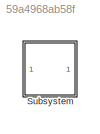
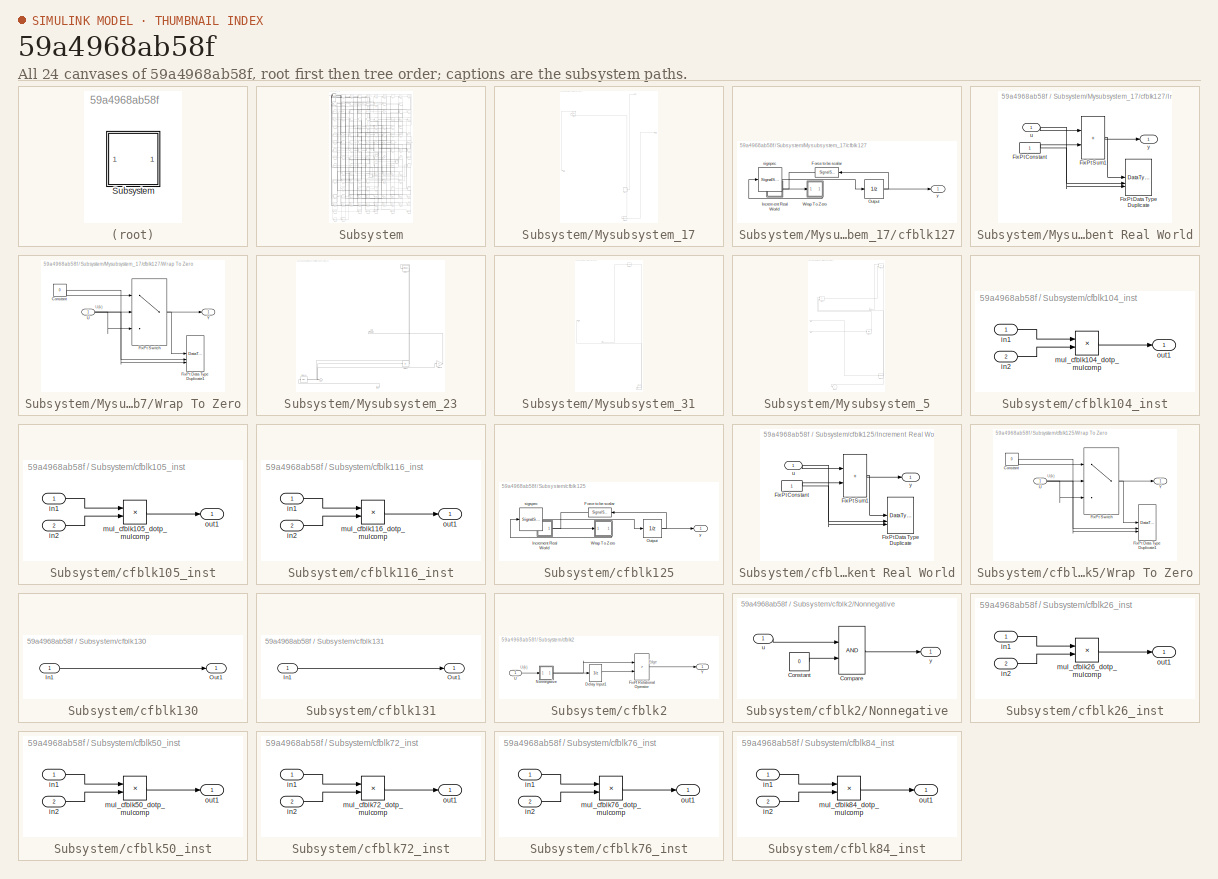
[diagram: thumbnail index - all 24 canvases of the model, root first then tree order]
MODEL slx_59a4968ab58f
KIND model
CONFIG AbsTol = auto
CONFIG EnableMultiTasking = off
CONFIG FixedStep = auto
CONFIG MaxStep = auto
CONFIG MinStep = auto
CONFIG RelTol = 1e-3
CONFIG SampleTimeConstraint = Unconstrained
CONFIG SolverName = VariableStepAuto
CONFIG StartTime = 0.0
CONFIG StopTime = 10.0
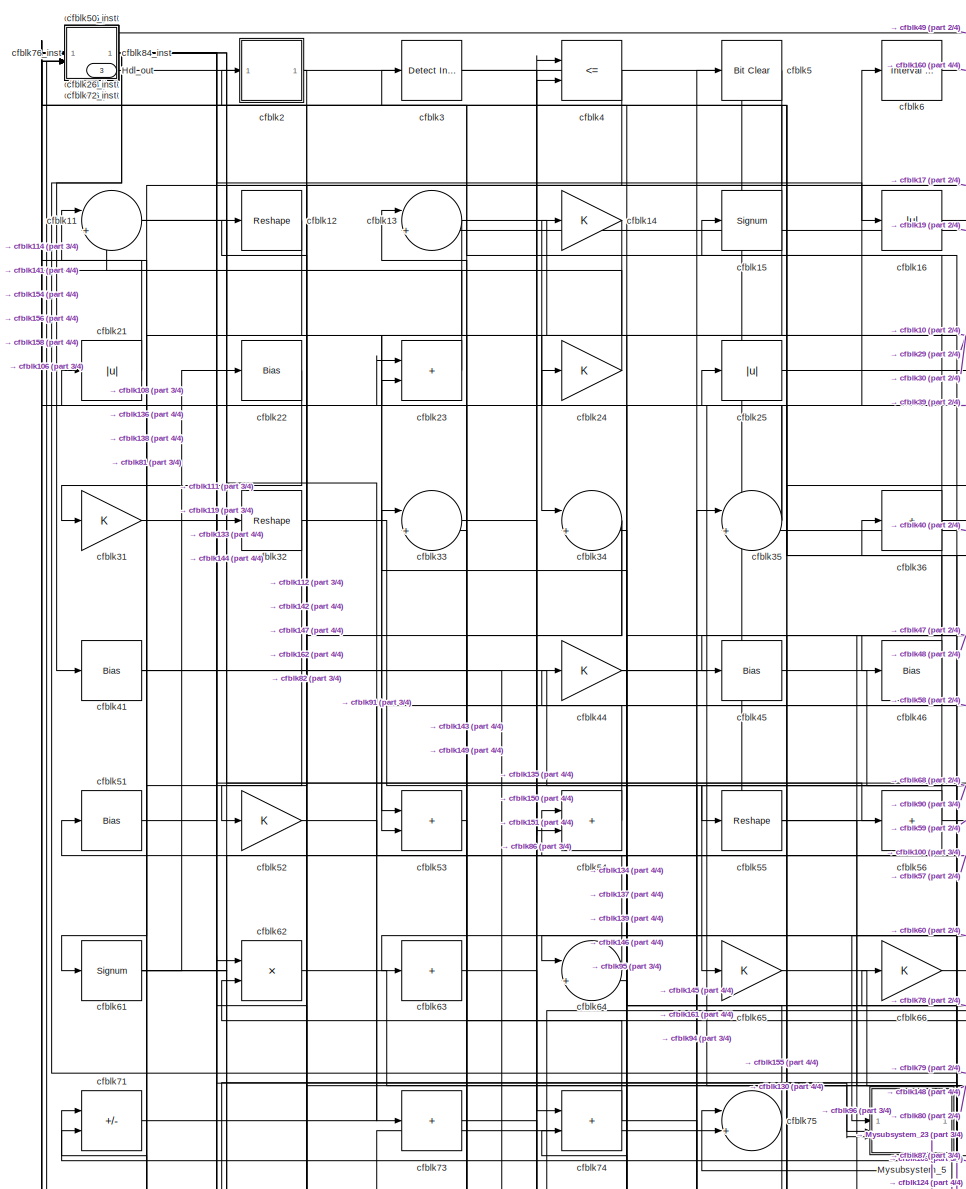
[diagram: Subsystem - part 1/4, top left region]
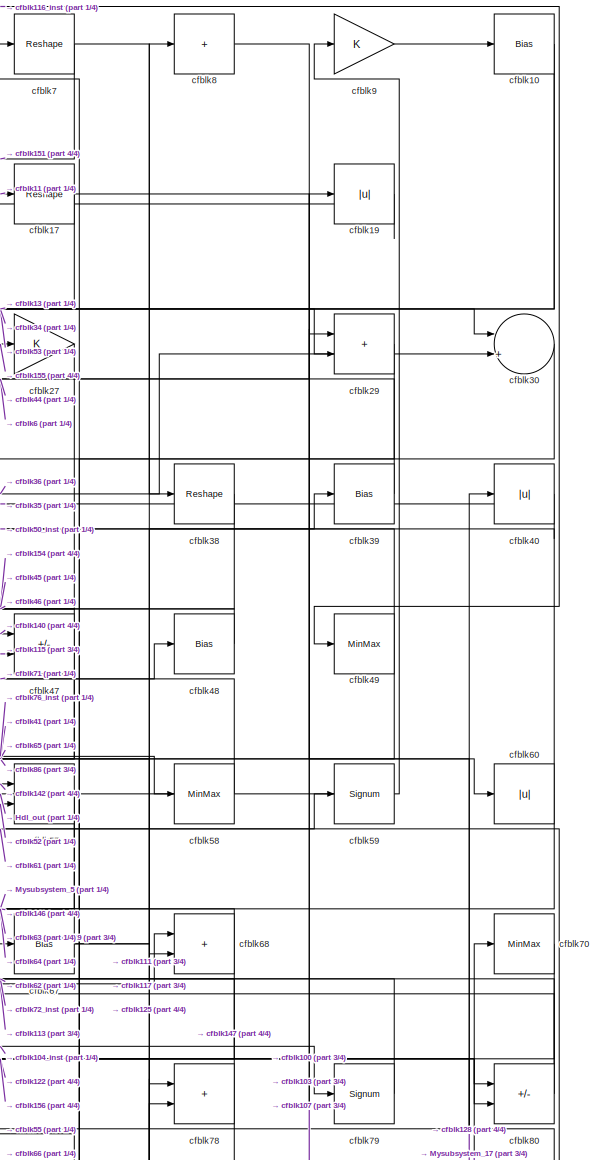
[diagram: Subsystem - part 2/4, top right region]
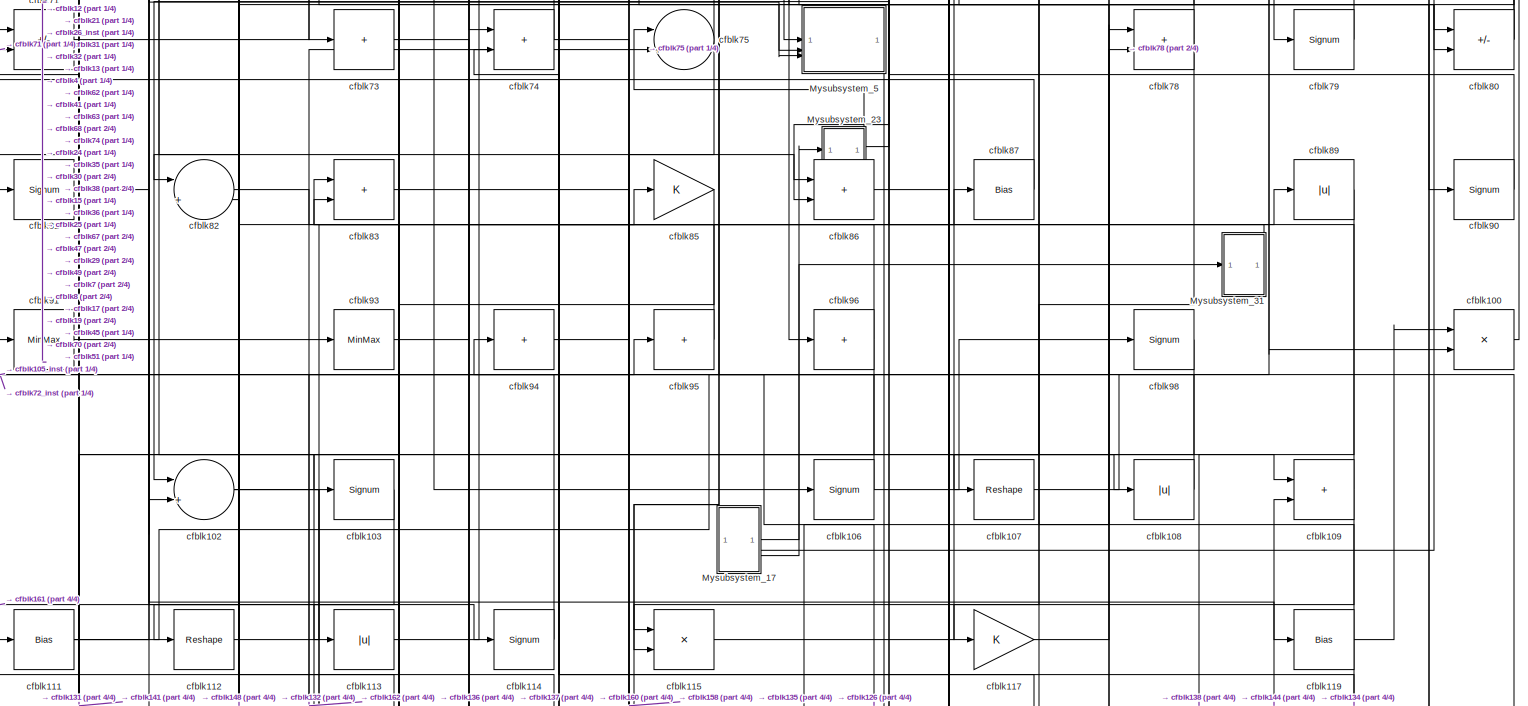
[diagram: Subsystem - part 3/4, full width, middle band]
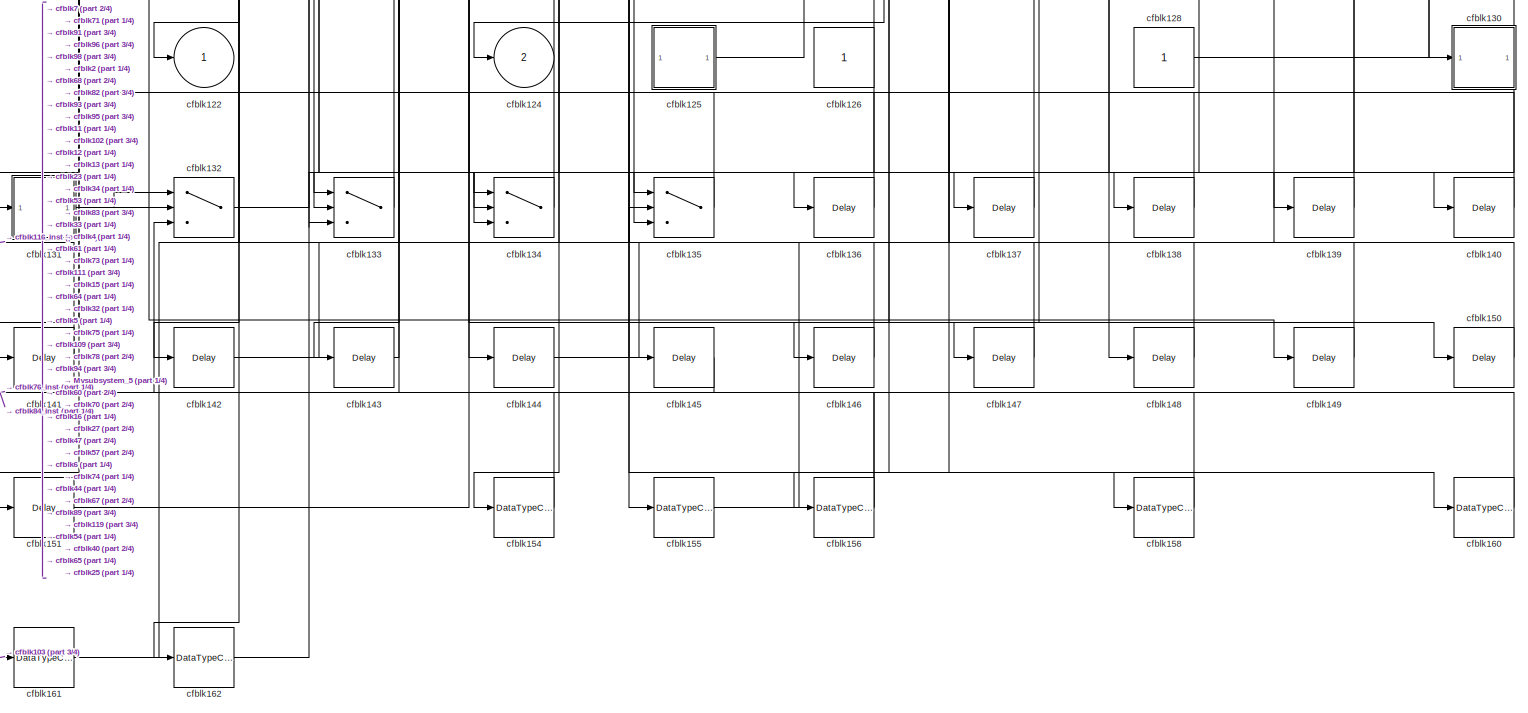
[diagram: Subsystem - part 4/4, full width, bottom band]
BLOCK [SubSystem] Subsystem
BLOCK [Outport] Subsystem/Hdl_out
  OutDataTypeStr = uint8
  Port = 3
  SampleTime = 1
BLOCK [SubSystem] Subsystem/Mysubsystem_17
BLOCK [Outport] Subsystem/Mysubsystem_17/Out2
  Port = 2
  SampleTime = 1
BLOCK [Outport] Subsystem/Mysubsystem_17/Out3
  Port = 3
  SampleTime = 1
BLOCK [SubSystem] Subsystem/Mysubsystem_17/cfblk127
BLOCK [SignalSpecification] Subsystem/Mysubsystem_17/cfblk127/Force to be scalar
  Dimensions = 1
  DisableCoverage = on
BLOCK [SubSystem] Subsystem/Mysubsystem_17/cfblk127/Increment Real World
BLOCK [Constant] Subsystem/Mysubsystem_17/cfblk127/Increment Real World/FixPt Constant
  DisableCoverage = on
  OutDataTypeStr = Inherit: Inherit via back propagation
  SampleTime = -1
BLOCK [DataTypeDuplicate] Subsystem/Mysubsystem_17/cfblk127/Increment Real World/FixPt Data Type Duplicate
  DisableCoverage = on
  NumInputPorts = 3
BLOCK [Sum] Subsystem/Mysubsystem_17/cfblk127/Increment Real World/FixPt Sum1
  IconShape = rectangular
  InputSameDT = on
  LockScale = on
  OutDataTypeStr = Inherit: Inherit via back propagation
BLOCK [Inport] Subsystem/Mysubsystem_17/cfblk127/Increment Real World/u
  OutDataTypeStr = uint16
  SampleTime = 1
BLOCK [Outport] Subsystem/Mysubsystem_17/cfblk127/Increment Real World/y
  SampleTime = 1
BLOCK [UnitDelay] Subsystem/Mysubsystem_17/cfblk127/Output
  HasFrameUpgradeWarning = on
  InitialCondition = 0.0
  SampleTime = tsamp
BLOCK [SubSystem] Subsystem/Mysubsystem_17/cfblk127/Wrap To Zero
BLOCK [Constant] Subsystem/Mysubsystem_17/cfblk127/Wrap To Zero/Constant
  DisableCoverage = on
  OutDataTypeStr = Inherit: Inherit via back propagation
  SampleTime = -1
  Value = 0
BLOCK [DataTypeDuplicate] Subsystem/Mysubsystem_17/cfblk127/Wrap To Zero/FixPt Data Type Duplicate1
  DisableCoverage = on
  NumInputPorts = 3
BLOCK [Switch] Subsystem/Mysubsystem_17/cfblk127/Wrap To Zero/FixPt Switch
  Criteria = u2 > Threshold
  InputSameDT = off
  OutDataTypeStr = Inherit: Inherit via back propagation
  SaturateOnIntegerOverflow = off
  Threshold = Threshold
  ZeroCross = off
BLOCK [Inport] Subsystem/Mysubsystem_17/cfblk127/Wrap To Zero/U
  OutDataTypeStr = uint16
  SampleTime = 1
BLOCK [Outport] Subsystem/Mysubsystem_17/cfblk127/Wrap To Zero/Y
  SampleTime = 1
BLOCK [SignalSpecification] Subsystem/Mysubsystem_17/cfblk127/sigspec
  Dimensions = 1
  OutDataTypeStr = uint16
BLOCK [Outport] Subsystem/Mysubsystem_17/cfblk127/y
  SampleTime = 1
BLOCK [DataTypeConversion] Subsystem/Mysubsystem_17/cfblk157
  OutDataTypeStr = uint8
  RndMeth = Floor
  SaturateOnIntegerOverflow = off
BLOCK [Bias] Subsystem/Mysubsystem_17/cfblk42
  Bias = 0.0
  SaturateOnIntegerOverflow = off
BLOCK [Outport] Subsystem/Mysubsystem_17/y
  SampleTime = 1
BLOCK [SubSystem] Subsystem/Mysubsystem_23
BLOCK [Inport] Subsystem/Mysubsystem_23/In1
  OutDataTypeStr = uint16
  PortDimensions = 1
  SampleTime = 1
BLOCK [Outport] Subsystem/Mysubsystem_23/Out1
  SampleTime = 1
BLOCK [Outport] Subsystem/Mysubsystem_23/Out2
  Port = 2
  SampleTime = 1
BLOCK [Bias] Subsystem/Mysubsystem_23/cfblk101
  Bias = 0.0
  SaturateOnIntegerOverflow = off
BLOCK [MinMax] Subsystem/Mysubsystem_23/cfblk37
BLOCK [Abs] Subsystem/Mysubsystem_23/cfblk97
  SaturateOnIntegerOverflow = off
BLOCK [Gain] Subsystem/Mysubsystem_23/cfblk99
BLOCK [SubSystem] Subsystem/Mysubsystem_31
BLOCK [Inport] Subsystem/Mysubsystem_31/In1
  OutDataTypeStr = uint16
  PortDimensions = 1
  SampleTime = 1
BLOCK [Outport] Subsystem/Mysubsystem_31/Out1
  SampleTime = 1
BLOCK [DataTypeConversion] Subsystem/Mysubsystem_31/cfblk159
  OutDataTypeStr = uint8
  RndMeth = Floor
  SaturateOnIntegerOverflow = off
BLOCK [Reshape] Subsystem/Mysubsystem_31/cfblk28
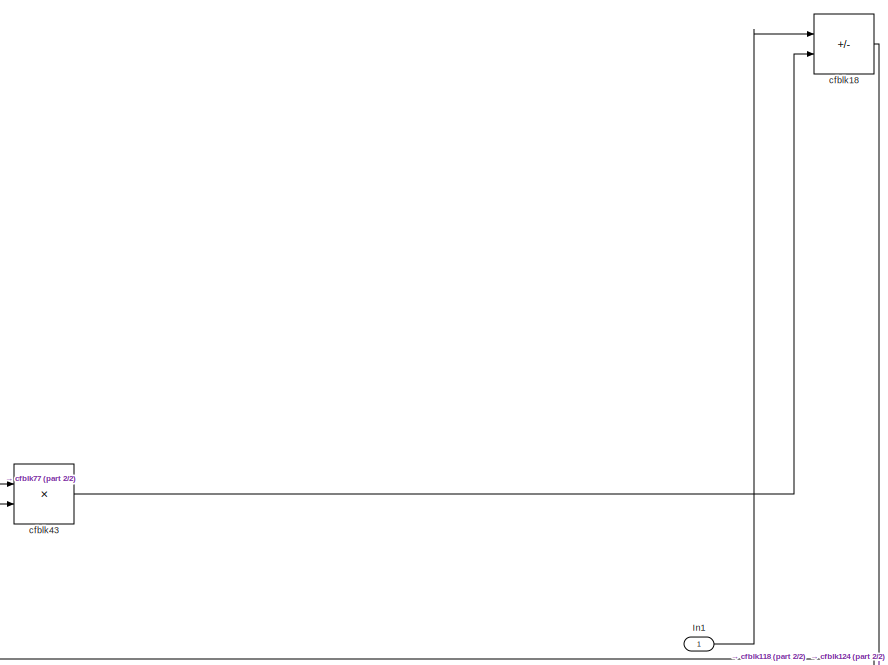
[diagram: Subsystem/Mysubsystem_5 - part 1/2, full width, top band]
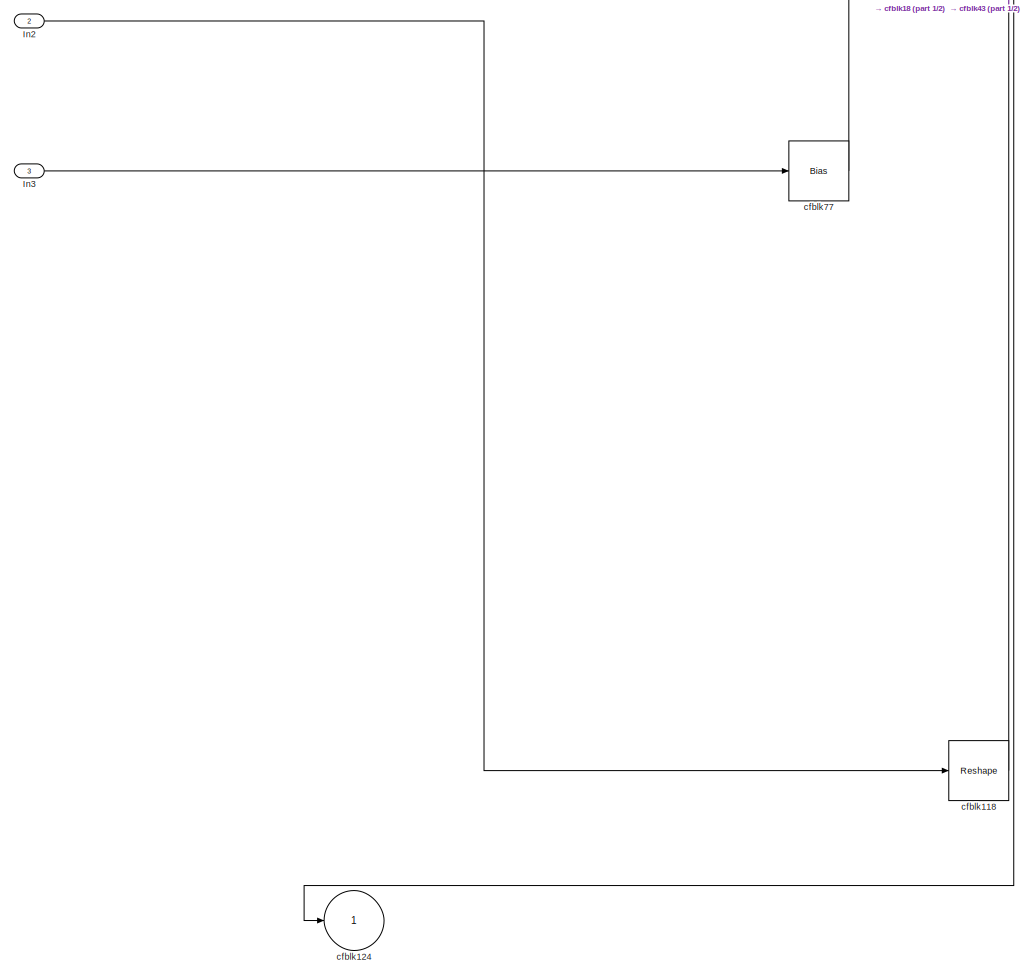
[diagram: Subsystem/Mysubsystem_5 - part 2/2, full width, bottom band]
BLOCK [SubSystem] Subsystem/Mysubsystem_5
BLOCK [Inport] Subsystem/Mysubsystem_5/In1
  OutDataTypeStr = uint8
  PortDimensions = 1
  SampleTime = 1
BLOCK [Inport] Subsystem/Mysubsystem_5/In2
  OutDataTypeStr = uint8
  Port = 2
  PortDimensions = 1
  SampleTime = 1
BLOCK [Inport] Subsystem/Mysubsystem_5/In3
  OutDataTypeStr = uint8
  Port = 3
  PortDimensions = 1
  SampleTime = 1
BLOCK [Reshape] Subsystem/Mysubsystem_5/cfblk118
BLOCK [Outport] Subsystem/Mysubsystem_5/cfblk124
  SampleTime = 1
  VectorParamsAs1DForOutWhenUnconnected = off
BLOCK [Sum] Subsystem/Mysubsystem_5/cfblk18
  IconShape = rectangular
  Inputs = +-
BLOCK [Product] Subsystem/Mysubsystem_5/cfblk43
  Inputs = */
  RndMeth = Zero
  SaturateOnIntegerOverflow = on
BLOCK [Bias] Subsystem/Mysubsystem_5/cfblk77
  Bias = 0.0
  SaturateOnIntegerOverflow = off
BLOCK [Bias] Subsystem/cfblk10
  Bias = 0.0
  SaturateOnIntegerOverflow = off
BLOCK [Product] Subsystem/cfblk100
  Inputs = */
  OutDataTypeStr = uint8
  RndMeth = Zero
  SaturateOnIntegerOverflow = on
BLOCK [Sum] Subsystem/cfblk102
  Inputs = |++
  OutDataTypeStr = uint8
BLOCK [Signum] Subsystem/cfblk103
BLOCK [SubSystem] Subsystem/cfblk104_inst
BLOCK [Inport] Subsystem/cfblk104_inst/in1
  OutDataTypeStr = uint8
  SampleTime = 1
BLOCK [Inport] Subsystem/cfblk104_inst/in2
  OutDataTypeStr = uint8
  Port = 2
  SampleTime = 1
BLOCK [Product] Subsystem/cfblk104_inst/mul_cfblk104_dotp_mulcomp
  Inputs = **
  OutDataTypeStr = uint8
  SampleTime = 1
BLOCK [Outport] Subsystem/cfblk104_inst/out1
  OutDataTypeStr = uint8
  SampleTime = 1
BLOCK [SubSystem] Subsystem/cfblk105_inst
BLOCK [Inport] Subsystem/cfblk105_inst/in1
  OutDataTypeStr = uint8
  SampleTime = 1
BLOCK [Inport] Subsystem/cfblk105_inst/in2
  OutDataTypeStr = uint8
  Port = 2
  SampleTime = 1
BLOCK [Product] Subsystem/cfblk105_inst/mul_cfblk105_dotp_mulcomp
  Inputs = **
  OutDataTypeStr = uint8
  SampleTime = 1
BLOCK [Outport] Subsystem/cfblk105_inst/out1
  OutDataTypeStr = uint8
  SampleTime = 1
BLOCK [Signum] Subsystem/cfblk106
BLOCK [Reshape] Subsystem/cfblk107
BLOCK [Abs] Subsystem/cfblk108
  OutDataTypeStr = uint8
  SaturateOnIntegerOverflow = off
BLOCK [Sum] Subsystem/cfblk109
  IconShape = rectangular
  OutDataTypeStr = uint8
BLOCK [Sum] Subsystem/cfblk11
  Inputs = |++
  OutDataTypeStr = uint8
BLOCK [Bias] Subsystem/cfblk111
  Bias = 0.0
  SaturateOnIntegerOverflow = off
BLOCK [Reshape] Subsystem/cfblk112
BLOCK [Abs] Subsystem/cfblk113
  OutDataTypeStr = uint8
  SaturateOnIntegerOverflow = off
BLOCK [Signum] Subsystem/cfblk114
BLOCK [Product] Subsystem/cfblk115
  Inputs = */
  OutDataTypeStr = uint8
  RndMeth = Zero
  SaturateOnIntegerOverflow = on
BLOCK [SubSystem] Subsystem/cfblk116_inst
BLOCK [Inport] Subsystem/cfblk116_inst/in1
  OutDataTypeStr = uint8
  SampleTime = 1
BLOCK [Inport] Subsystem/cfblk116_inst/in2
  OutDataTypeStr = uint8
  Port = 2
  SampleTime = 1
BLOCK [Product] Subsystem/cfblk116_inst/mul_cfblk116_dotp_mulcomp
  Inputs = **
  OutDataTypeStr = uint8
  SampleTime = 1
BLOCK [Outport] Subsystem/cfblk116_inst/out1
  OutDataTypeStr = uint8
  SampleTime = 1
BLOCK [Gain] Subsystem/cfblk117
  OutDataTypeStr = uint8
BLOCK [Bias] Subsystem/cfblk119
  Bias = 0.0
  SaturateOnIntegerOverflow = off
BLOCK [Reshape] Subsystem/cfblk12
BLOCK [Outport] Subsystem/cfblk122
  OutDataTypeStr = uint8
  SampleTime = 1
  VectorParamsAs1DForOutWhenUnconnected = off
BLOCK [Outport] Subsystem/cfblk124
  OutDataTypeStr = uint8
  Port = 2
  SampleTime = 1
  VectorParamsAs1DForOutWhenUnconnected = off
BLOCK [SubSystem] Subsystem/cfblk125
BLOCK [SignalSpecification] Subsystem/cfblk125/Force to be scalar
  Dimensions = 1
  DisableCoverage = on
BLOCK [SubSystem] Subsystem/cfblk125/Increment Real World
BLOCK [Constant] Subsystem/cfblk125/Increment Real World/FixPt Constant
  DisableCoverage = on
  OutDataTypeStr = Inherit: Inherit via back propagation
  SampleTime = -1
BLOCK [DataTypeDuplicate] Subsystem/cfblk125/Increment Real World/FixPt Data Type Duplicate
  DisableCoverage = on
  NumInputPorts = 3
BLOCK [Sum] Subsystem/cfblk125/Increment Real World/FixPt Sum1
  IconShape = rectangular
  InputSameDT = on
  LockScale = on
  OutDataTypeStr = Inherit: Inherit via back propagation
BLOCK [Inport] Subsystem/cfblk125/Increment Real World/u
  OutDataTypeStr = uint8
  SampleTime = 1
BLOCK [Outport] Subsystem/cfblk125/Increment Real World/y
  SampleTime = 1
BLOCK [UnitDelay] Subsystem/cfblk125/Output
  HasFrameUpgradeWarning = on
  InitialCondition = 0.0
  SampleTime = tsamp
BLOCK [SubSystem] Subsystem/cfblk125/Wrap To Zero
BLOCK [Constant] Subsystem/cfblk125/Wrap To Zero/Constant
  DisableCoverage = on
  OutDataTypeStr = Inherit: Inherit via back propagation
  SampleTime = -1
  Value = 0
BLOCK [DataTypeDuplicate] Subsystem/cfblk125/Wrap To Zero/FixPt Data Type Duplicate1
  DisableCoverage = on
  NumInputPorts = 3
BLOCK [Switch] Subsystem/cfblk125/Wrap To Zero/FixPt Switch
  Criteria = u2 > Threshold
  InputSameDT = off
  OutDataTypeStr = Inherit: Inherit via back propagation
  SaturateOnIntegerOverflow = off
  Threshold = Threshold
  ZeroCross = off
BLOCK [Inport] Subsystem/cfblk125/Wrap To Zero/U
  OutDataTypeStr = uint8
  SampleTime = 1
BLOCK [Outport] Subsystem/cfblk125/Wrap To Zero/Y
  SampleTime = 1
BLOCK [SignalSpecification] Subsystem/cfblk125/sigspec
  Dimensions = 1
  OutDataTypeStr = uint8
BLOCK [Outport] Subsystem/cfblk125/y
  SampleTime = 1
BLOCK [Constant] Subsystem/cfblk126
  OutDataTypeStr = uint8
  SampleTime = -1
BLOCK [Constant] Subsystem/cfblk128
  OutDataTypeStr = uint8
  SampleTime = -1
BLOCK [Sum] Subsystem/cfblk13
  Inputs = |++
  OutDataTypeStr = uint8
BLOCK [SubSystem] Subsystem/cfblk130
BLOCK [Inport] Subsystem/cfblk130/In1
  OutDataTypeStr = uint8
  PortDimensions = 1
  SampleTime = 1
BLOCK [Outport] Subsystem/cfblk130/Out1
  SampleTime = 1
BLOCK [SubSystem] Subsystem/cfblk131
BLOCK [Inport] Subsystem/cfblk131/In1
  OutDataTypeStr = uint8
  PortDimensions = 1
  SampleTime = 1
BLOCK [Outport] Subsystem/cfblk131/Out1
  SampleTime = 1
BLOCK [Switch] Subsystem/cfblk132
  InputSameDT = off
  OutDataTypeStr = uint8
  SaturateOnIntegerOverflow = off
BLOCK [Switch] Subsystem/cfblk133
  InputSameDT = off
  OutDataTypeStr = uint8
  SaturateOnIntegerOverflow = off
BLOCK [Switch] Subsystem/cfblk134
  InputSameDT = off
  OutDataTypeStr = uint8
  SaturateOnIntegerOverflow = off
BLOCK [Switch] Subsystem/cfblk135
  InputSameDT = off
  OutDataTypeStr = uint8
  SaturateOnIntegerOverflow = off
BLOCK [Delay] Subsystem/cfblk136
  InputPortMap = u0
  SampleTime = 1
BLOCK [Delay] Subsystem/cfblk137
  InputPortMap = u0
  SampleTime = 1
BLOCK [Delay] Subsystem/cfblk138
  InputPortMap = u0
  SampleTime = 1
BLOCK [Delay] Subsystem/cfblk139
  InputPortMap = u0
  SampleTime = 1
BLOCK [Gain] Subsystem/cfblk14
  OutDataTypeStr = uint8
BLOCK [Delay] Subsystem/cfblk140
  InputPortMap = u0
  SampleTime = 1
BLOCK [Delay] Subsystem/cfblk141
  InputPortMap = u0
  SampleTime = 1
BLOCK [Delay] Subsystem/cfblk142
  InputPortMap = u0
  SampleTime = 1
BLOCK [Delay] Subsystem/cfblk143
  InputPortMap = u0
  SampleTime = 1
BLOCK [Delay] Subsystem/cfblk144
  InputPortMap = u0
  SampleTime = 1
BLOCK [Delay] Subsystem/cfblk145
  InputPortMap = u0
  SampleTime = 1
BLOCK [Delay] Subsystem/cfblk146
  InputPortMap = u0
  SampleTime = 1
BLOCK [Delay] Subsystem/cfblk147
  InputPortMap = u0
  SampleTime = 1
BLOCK [Delay] Subsystem/cfblk148
  InputPortMap = u0
  SampleTime = 1
BLOCK [Delay] Subsystem/cfblk149
  InputPortMap = u0
  SampleTime = 1
BLOCK [Signum] Subsystem/cfblk15
BLOCK [Delay] Subsystem/cfblk150
  InputPortMap = u0
  SampleTime = 1
BLOCK [Delay] Subsystem/cfblk151
  InputPortMap = u0
  SampleTime = 1
BLOCK [DataTypeConversion] Subsystem/cfblk154
  OutDataTypeStr = uint8
  RndMeth = Floor
  SaturateOnIntegerOverflow = off
BLOCK [DataTypeConversion] Subsystem/cfblk155
  OutDataTypeStr = uint8
  RndMeth = Floor
  SaturateOnIntegerOverflow = off
BLOCK [DataTypeConversion] Subsystem/cfblk156
  OutDataTypeStr = uint8
  RndMeth = Floor
  SaturateOnIntegerOverflow = off
BLOCK [DataTypeConversion] Subsystem/cfblk158
  OutDataTypeStr = uint8
  RndMeth = Floor
  SaturateOnIntegerOverflow = off
BLOCK [Abs] Subsystem/cfblk16
  OutDataTypeStr = uint8
  SaturateOnIntegerOverflow = off
BLOCK [DataTypeConversion] Subsystem/cfblk160
  OutDataTypeStr = uint8
  RndMeth = Floor
  SaturateOnIntegerOverflow = off
BLOCK [DataTypeConversion] Subsystem/cfblk161
  OutDataTypeStr = uint8
  RndMeth = Floor
  SaturateOnIntegerOverflow = off
BLOCK [DataTypeConversion] Subsystem/cfblk162
  OutDataTypeStr = uint8
  RndMeth = Floor
  SaturateOnIntegerOverflow = off
BLOCK [Reshape] Subsystem/cfblk17
BLOCK [Abs] Subsystem/cfblk19
  OutDataTypeStr = uint8
  SaturateOnIntegerOverflow = off
BLOCK [SubSystem] Subsystem/cfblk2
BLOCK [UnitDelay] Subsystem/cfblk2/Delay Input1
  Description = Store in Global RAM
  DisableCoverage = on
  HasFrameUpgradeWarning = on
  InitialCondition = vinit
  SampleTime = -1
BLOCK [RelationalOperator] Subsystem/cfblk2/FixPt Relational Operator
  InputSameDT = off
  Operator = >
  OutDataTypeStr = fixdt(0, 8)
  ZeroCross = off
BLOCK [SubSystem] Subsystem/cfblk2/Nonnegative
BLOCK [RelationalOperator] Subsystem/cfblk2/Nonnegative/Compare
  OutDataTypeStr = boolean
  ZeroCross = off
BLOCK [Constant] Subsystem/cfblk2/Nonnegative/Constant
  DisableCoverage = on
  OutDataTypeStr = Inherit: Inherit via back propagation
  PreserveConstantTs = on
  SampleTime = -1
  Value = 0
BLOCK [Inport] Subsystem/cfblk2/Nonnegative/u
  OutDataTypeStr = uint8
  SampleTime = 1
BLOCK [Outport] Subsystem/cfblk2/Nonnegative/y
  SampleTime = 1
BLOCK [Inport] Subsystem/cfblk2/U
  OutDataTypeStr = uint8
  SampleTime = 1
BLOCK [Outport] Subsystem/cfblk2/Y
  SampleTime = 1
BLOCK [Abs] Subsystem/cfblk21
  OutDataTypeStr = uint8
  SaturateOnIntegerOverflow = off
BLOCK [Bias] Subsystem/cfblk22
  Bias = 0.0
  SaturateOnIntegerOverflow = off
BLOCK [Sum] Subsystem/cfblk23
  IconShape = rectangular
  OutDataTypeStr = uint8
BLOCK [Gain] Subsystem/cfblk24
  OutDataTypeStr = uint8
BLOCK [Abs] Subsystem/cfblk25
  OutDataTypeStr = uint8
  SaturateOnIntegerOverflow = off
BLOCK [SubSystem] Subsystem/cfblk26_inst
BLOCK [Inport] Subsystem/cfblk26_inst/in1
  OutDataTypeStr = uint8
  SampleTime = 1
BLOCK [Inport] Subsystem/cfblk26_inst/in2
  OutDataTypeStr = uint8
  Port = 2
  SampleTime = 1
BLOCK [Product] Subsystem/cfblk26_inst/mul_cfblk26_dotp_mulcomp
  Inputs = **
  OutDataTypeStr = uint8
  SampleTime = 1
BLOCK [Outport] Subsystem/cfblk26_inst/out1
  OutDataTypeStr = uint8
  SampleTime = 1
BLOCK [Gain] Subsystem/cfblk27
  OutDataTypeStr = uint8
BLOCK [Sum] Subsystem/cfblk29
  IconShape = rectangular
  OutDataTypeStr = uint8
BLOCK [Reference] Subsystem/cfblk3  REF=simulink/Logic and Bit
Operations/Detect
Increase
  LibrarySourceBlock = hdlsllib/Logic and Bit\nOperations/Detect\nIncrease
  SourceBlock = simulink/Logic and Bit\nOperations/Detect\nIncrease
  SourceType = Detect Increase
BLOCK [Sum] Subsystem/cfblk30
  Inputs = |++
  OutDataTypeStr = uint8
BLOCK [Gain] Subsystem/cfblk31
  OutDataTypeStr = uint8
BLOCK [Reshape] Subsystem/cfblk32
BLOCK [Sum] Subsystem/cfblk33
  Inputs = |++
  OutDataTypeStr = uint8
BLOCK [Sum] Subsystem/cfblk34
  Inputs = |++
  OutDataTypeStr = uint8
BLOCK [Sum] Subsystem/cfblk35
  Inputs = |++
  OutDataTypeStr = uint8
BLOCK [Sum] Subsystem/cfblk36
  IconShape = rectangular
  Inputs = +
  OutDataTypeStr = uint8
BLOCK [Reshape] Subsystem/cfblk38
BLOCK [Bias] Subsystem/cfblk39
  Bias = 0.0
  SaturateOnIntegerOverflow = off
BLOCK [RelationalOperator] Subsystem/cfblk4
  InputSameDT = off
  Operator = <=
  OutDataTypeStr = boolean
BLOCK [Abs] Subsystem/cfblk40
  OutDataTypeStr = uint8
  SaturateOnIntegerOverflow = off
BLOCK [Bias] Subsystem/cfblk41
  Bias = 0.0
  SaturateOnIntegerOverflow = off
BLOCK [Gain] Subsystem/cfblk44
  OutDataTypeStr = uint8
BLOCK [Bias] Subsystem/cfblk45
  Bias = 0.0
  SaturateOnIntegerOverflow = off
BLOCK [Bias] Subsystem/cfblk46
  Bias = 0.0
  SaturateOnIntegerOverflow = off
BLOCK [Sum] Subsystem/cfblk47
  IconShape = rectangular
  Inputs = +-
  OutDataTypeStr = uint8
BLOCK [Bias] Subsystem/cfblk48
  Bias = 0.0
  SaturateOnIntegerOverflow = off
BLOCK [MinMax] Subsystem/cfblk49
  OutDataTypeStr = uint8
BLOCK [Reference] Subsystem/cfblk5  REF=simulink/Logic and Bit
Operations/Bit Clear
  LibrarySourceBlock = hdlsllib/Logic and Bit\nOperations/Bit Clear
  SourceBlock = simulink/Logic and Bit\nOperations/Bit Clear
  SourceType = Bit Clear
BLOCK [SubSystem] Subsystem/cfblk50_inst
BLOCK [Inport] Subsystem/cfblk50_inst/in1
  OutDataTypeStr = uint8
  SampleTime = 1
BLOCK [Inport] Subsystem/cfblk50_inst/in2
  OutDataTypeStr = uint8
  Port = 2
  SampleTime = 1
BLOCK [Product] Subsystem/cfblk50_inst/mul_cfblk50_dotp_mulcomp
  Inputs = **
  OutDataTypeStr = uint8
  SampleTime = 1
BLOCK [Outport] Subsystem/cfblk50_inst/out1
  OutDataTypeStr = uint8
  SampleTime = 1
BLOCK [Bias] Subsystem/cfblk51
  Bias = 0.0
  SaturateOnIntegerOverflow = off
BLOCK [Gain] Subsystem/cfblk52
  OutDataTypeStr = uint8
BLOCK [Sum] Subsystem/cfblk53
  IconShape = rectangular
  OutDataTypeStr = uint8
BLOCK [Sum] Subsystem/cfblk54
  IconShape = rectangular
  OutDataTypeStr = uint8
BLOCK [Reshape] Subsystem/cfblk55
BLOCK [Sum] Subsystem/cfblk56
  IconShape = rectangular
  Inputs = +
  OutDataTypeStr = uint8
BLOCK [Product] Subsystem/cfblk57
  Inputs = */
  OutDataTypeStr = uint8
  RndMeth = Zero
  SaturateOnIntegerOverflow = on
BLOCK [MinMax] Subsystem/cfblk58
  OutDataTypeStr = uint8
BLOCK [Signum] Subsystem/cfblk59
BLOCK [Reference] Subsystem/cfblk6  REF=hdlsllib/Logic and Bit
Operations/Interval Test
  SourceBlock = hdlsllib/Logic and Bit\nOperations/Interval Test
  SourceType = Interval Test
BLOCK [Abs] Subsystem/cfblk60
  OutDataTypeStr = uint8
  SaturateOnIntegerOverflow = off
BLOCK [Signum] Subsystem/cfblk61
BLOCK [Product] Subsystem/cfblk62
  Inputs = */
  OutDataTypeStr = uint8
  RndMeth = Zero
  SaturateOnIntegerOverflow = on
BLOCK [Sum] Subsystem/cfblk63
  IconShape = rectangular
  Inputs = +
  OutDataTypeStr = uint8
BLOCK [Sum] Subsystem/cfblk64
  Inputs = |++
  OutDataTypeStr = uint8
BLOCK [Gain] Subsystem/cfblk65
  OutDataTypeStr = uint8
BLOCK [Gain] Subsystem/cfblk66
  OutDataTypeStr = uint8
BLOCK [Bias] Subsystem/cfblk67
  Bias = 0.0
  SaturateOnIntegerOverflow = off
BLOCK [Sum] Subsystem/cfblk68
  IconShape = rectangular
  OutDataTypeStr = uint8
BLOCK [Reshape] Subsystem/cfblk7
BLOCK [MinMax] Subsystem/cfblk70
  OutDataTypeStr = uint8
BLOCK [Sum] Subsystem/cfblk71
  IconShape = rectangular
  Inputs = +-
  OutDataTypeStr = uint8
BLOCK [SubSystem] Subsystem/cfblk72_inst
BLOCK [Inport] Subsystem/cfblk72_inst/in1
  OutDataTypeStr = uint8
  SampleTime = 1
BLOCK [Inport] Subsystem/cfblk72_inst/in2
  OutDataTypeStr = uint8
  Port = 2
  SampleTime = 1
BLOCK [Product] Subsystem/cfblk72_inst/mul_cfblk72_dotp_mulcomp
  Inputs = **
  OutDataTypeStr = uint8
  SampleTime = 1
BLOCK [Outport] Subsystem/cfblk72_inst/out1
  OutDataTypeStr = uint8
  SampleTime = 1
BLOCK [Sum] Subsystem/cfblk73
  IconShape = rectangular
  Inputs = +
  OutDataTypeStr = uint8
BLOCK [Sum] Subsystem/cfblk74
  IconShape = rectangular
  OutDataTypeStr = uint8
BLOCK [Sum] Subsystem/cfblk75
  Inputs = |++
  OutDataTypeStr = uint8
BLOCK [SubSystem] Subsystem/cfblk76_inst
BLOCK [Inport] Subsystem/cfblk76_inst/in1
  OutDataTypeStr = uint8
  SampleTime = 1
BLOCK [Inport] Subsystem/cfblk76_inst/in2
  OutDataTypeStr = uint8
  Port = 2
  SampleTime = 1
BLOCK [Product] Subsystem/cfblk76_inst/mul_cfblk76_dotp_mulcomp
  Inputs = **
  OutDataTypeStr = uint8
  SampleTime = 1
BLOCK [Outport] Subsystem/cfblk76_inst/out1
  OutDataTypeStr = uint8
  SampleTime = 1
BLOCK [Sum] Subsystem/cfblk78
  IconShape = rectangular
  OutDataTypeStr = uint8
BLOCK [Signum] Subsystem/cfblk79
BLOCK [Sum] Subsystem/cfblk8
  IconShape = rectangular
  Inputs = +
  OutDataTypeStr = uint8
BLOCK [Sum] Subsystem/cfblk80
  IconShape = rectangular
  Inputs = +-
  OutDataTypeStr = uint8
BLOCK [Signum] Subsystem/cfblk81
BLOCK [Sum] Subsystem/cfblk82
  Inputs = |++
  OutDataTypeStr = uint8
BLOCK [Sum] Subsystem/cfblk83
  IconShape = rectangular
  OutDataTypeStr = uint8
BLOCK [SubSystem] Subsystem/cfblk84_inst
BLOCK [Inport] Subsystem/cfblk84_inst/in1
  OutDataTypeStr = uint8
  SampleTime = 1
BLOCK [Inport] Subsystem/cfblk84_inst/in2
  OutDataTypeStr = uint8
  Port = 2
  SampleTime = 1
BLOCK [Product] Subsystem/cfblk84_inst/mul_cfblk84_dotp_mulcomp
  Inputs = **
  OutDataTypeStr = uint8
  SampleTime = 1
BLOCK [Outport] Subsystem/cfblk84_inst/out1
  OutDataTypeStr = uint8
  SampleTime = 1
BLOCK [Gain] Subsystem/cfblk85
  OutDataTypeStr = uint8
BLOCK [Sum] Subsystem/cfblk86
  IconShape = rectangular
  OutDataTypeStr = uint8
BLOCK [Bias] Subsystem/cfblk87
  Bias = 0.0
  SaturateOnIntegerOverflow = off
BLOCK [Abs] Subsystem/cfblk89
  OutDataTypeStr = uint8
  SaturateOnIntegerOverflow = off
BLOCK [Gain] Subsystem/cfblk9
  OutDataTypeStr = uint8
BLOCK [Signum] Subsystem/cfblk90
BLOCK [MinMax] Subsystem/cfblk91
  OutDataTypeStr = uint8
BLOCK [MinMax] Subsystem/cfblk93
  OutDataTypeStr = uint8
BLOCK [Sum] Subsystem/cfblk94
  IconShape = rectangular
  Inputs = +
  OutDataTypeStr = uint8
BLOCK [Sum] Subsystem/cfblk95
  IconShape = rectangular
  Inputs = +
  OutDataTypeStr = uint8
BLOCK [Sum] Subsystem/cfblk96
  IconShape = rectangular
  Inputs = +
  OutDataTypeStr = uint8
BLOCK [Signum] Subsystem/cfblk98
ANNOTATION Subsystem/Mysubsystem_17/cfblk127/Wrap To Zero: U(k)
ANNOTATION Subsystem/cfblk125/Wrap To Zero: U(k)
ANNOTATION Subsystem/cfblk2: Edge
ANNOTATION Subsystem/cfblk2: U(k)
NET Subsystem/Mysubsystem_17/cfblk127:1 -> Subsystem/Mysubsystem_17/cfblk157:1, Subsystem/Mysubsystem_17/cfblk42:1, Subsystem/Mysubsystem_17/y:1
LINE Subsystem/Mysubsystem_17/cfblk157:1 -> Subsystem/Mysubsystem_17/Out2:1
LINE Subsystem/Mysubsystem_17/cfblk42:1 -> Subsystem/Mysubsystem_17/Out3:1
LINE Subsystem/Mysubsystem_17:1 -> Subsystem/Mysubsystem_31:1
LINE Subsystem/Mysubsystem_17:2 -> Subsystem/cfblk70:1
LINE Subsystem/Mysubsystem_17:3 -> Subsystem/Mysubsystem_23:1
LINE Subsystem/Mysubsystem_23/In1:1 -> Subsystem/Mysubsystem_23/cfblk101:1
NET Subsystem/Mysubsystem_23/cfblk101:1 -> Subsystem/Mysubsystem_23/cfblk97:1, Subsystem/Mysubsystem_23/cfblk99:1
LINE Subsystem/Mysubsystem_23/cfblk37:1 -> Subsystem/Mysubsystem_23/Out2:1
LINE Subsystem/Mysubsystem_23/cfblk97:1 -> Subsystem/Mysubsystem_23/cfblk37:1
LINE Subsystem/Mysubsystem_23/cfblk99:1 -> Subsystem/Mysubsystem_23/Out1:1
LINE Subsystem/Mysubsystem_23:1 -> Subsystem/cfblk75:1
LINE Subsystem/Mysubsystem_23:2 -> Subsystem/cfblk102:1
LINE Subsystem/Mysubsystem_31/In1:1 -> Subsystem/Mysubsystem_31/cfblk28:1
LINE Subsystem/Mysubsystem_31/cfblk159:1 -> Subsystem/Mysubsystem_31/Out1:1
LINE Subsystem/Mysubsystem_31/cfblk28:1 -> Subsystem/Mysubsystem_31/cfblk159:1
LINE Subsystem/Mysubsystem_31:1 -> Subsystem/cfblk83:1
LINE Subsystem/Mysubsystem_5/In1:1 -> Subsystem/Mysubsystem_5/cfblk18:1
LINE Subsystem/Mysubsystem_5/In2:1 -> Subsystem/Mysubsystem_5/cfblk118:1
LINE Subsystem/Mysubsystem_5/In3:1 -> Subsystem/Mysubsystem_5/cfblk77:1
LINE Subsystem/Mysubsystem_5/cfblk118:1 -> Subsystem/Mysubsystem_5/cfblk43:2
LINE Subsystem/Mysubsystem_5/cfblk18:1 -> Subsystem/Mysubsystem_5/cfblk124:1
LINE Subsystem/Mysubsystem_5/cfblk43:1 -> Subsystem/Mysubsystem_5/cfblk18:2
LINE Subsystem/Mysubsystem_5/cfblk77:1 -> Subsystem/Mysubsystem_5/cfblk43:1
LINE Subsystem/Mysubsystem_5:1 -> Subsystem/cfblk124:1
LINE Subsystem/cfblk100:1 -> Subsystem/cfblk51:1
NET Subsystem/cfblk102:1 -> Subsystem/cfblk136:1, Subsystem/cfblk137:1
LINE Subsystem/cfblk103:1 -> Subsystem/cfblk161:1
LINE Subsystem/cfblk104_inst/in1:1 -> Subsystem/cfblk104_inst/mul_cfblk104_dotp_mulcomp:1
LINE Subsystem/cfblk104_inst/in2:1 -> Subsystem/cfblk104_inst/mul_cfblk104_dotp_mulcomp:2
LINE Subsystem/cfblk104_inst/mul_cfblk104_dotp_mulcomp:1 -> Subsystem/cfblk104_inst/out1:1
LINE Subsystem/cfblk104_inst:1 -> Subsystem/cfblk79:1
LINE Subsystem/cfblk105_inst/in1:1 -> Subsystem/cfblk105_inst/mul_cfblk105_dotp_mulcomp:1
LINE Subsystem/cfblk105_inst/in2:1 -> Subsystem/cfblk105_inst/mul_cfblk105_dotp_mulcomp:2
LINE Subsystem/cfblk105_inst/mul_cfblk105_dotp_mulcomp:1 -> Subsystem/cfblk105_inst/out1:1
LINE Subsystem/cfblk105_inst:1 -> Subsystem/cfblk56:1
NET Subsystem/cfblk106:1 -> Subsystem/cfblk72_inst:2, Subsystem/cfblk98:1
LINE Subsystem/cfblk107:1 -> Subsystem/cfblk19:1
LINE Subsystem/cfblk108:1 -> Subsystem/cfblk21:1
NET Subsystem/cfblk109:1 -> Subsystem/cfblk135:3, Subsystem/cfblk36:1
NET Subsystem/cfblk10:1 -> Subsystem/cfblk34:1, Subsystem/cfblk53:2
NET Subsystem/cfblk111:1 -> Subsystem/cfblk32:1, Subsystem/cfblk8:1
LINE Subsystem/cfblk112:1 -> Subsystem/cfblk85:1
LINE Subsystem/cfblk113:1 -> Subsystem/cfblk68:1
LINE Subsystem/cfblk114:1 -> Subsystem/cfblk105_inst:1
LINE Subsystem/cfblk115:1 -> Subsystem/cfblk47:2
LINE Subsystem/cfblk116_inst/in1:1 -> Subsystem/cfblk116_inst/mul_cfblk116_dotp_mulcomp:1
LINE Subsystem/cfblk116_inst/in2:1 -> Subsystem/cfblk116_inst/mul_cfblk116_dotp_mulcomp:2
LINE Subsystem/cfblk116_inst/mul_cfblk116_dotp_mulcomp:1 -> Subsystem/cfblk116_inst/out1:1
NET Subsystem/cfblk116_inst:1 -> Subsystem/cfblk49:1, Subsystem/cfblk73:1
LINE Subsystem/cfblk117:1 -> Subsystem/cfblk78:1
NET Subsystem/cfblk119:1 -> Subsystem/cfblk100:1, Subsystem/cfblk134:3, Subsystem/cfblk7:1
NET Subsystem/cfblk11:1 -> Subsystem/cfblk133:2, Subsystem/cfblk17:1, Subsystem/cfblk29:2
LINE Subsystem/cfblk125:1 -> Subsystem/cfblk78:2
NET Subsystem/cfblk126:1 -> Subsystem/cfblk133:3, Subsystem/cfblk94:1
LINE Subsystem/cfblk128:1 -> Subsystem/cfblk40:1
LINE Subsystem/cfblk12:1 -> Subsystem/cfblk81:1
LINE Subsystem/cfblk130/In1:1 -> Subsystem/cfblk130/Out1:1
NET Subsystem/cfblk130:1 -> Subsystem/cfblk134:2, Subsystem/cfblk25:1
LINE Subsystem/cfblk131/In1:1 -> Subsystem/cfblk131/Out1:1
NET Subsystem/cfblk131:1 -> Subsystem/cfblk132:1, Subsystem/cfblk132:2
LINE Subsystem/cfblk132:1 -> Subsystem/cfblk95:1
LINE Subsystem/cfblk133:1 -> Subsystem/cfblk12:1
LINE Subsystem/cfblk134:1 -> Subsystem/cfblk111:1
LINE Subsystem/cfblk135:1 -> Subsystem/cfblk91:1
LINE Subsystem/cfblk136:1 -> Subsystem/cfblk71:1
LINE Subsystem/cfblk137:1 -> Subsystem/cfblk74:2
LINE Subsystem/cfblk138:1 -> Subsystem/cfblk11:1
LINE Subsystem/cfblk139:1 -> Subsystem/cfblk54:1
NET Subsystem/cfblk13:1 -> Subsystem/cfblk112:1, Subsystem/cfblk30:1
LINE Subsystem/cfblk140:1 -> Subsystem/cfblk47:1
LINE Subsystem/cfblk141:1 -> Subsystem/cfblk116_inst:1
LINE Subsystem/cfblk142:1 -> Subsystem/cfblk57:1
LINE Subsystem/cfblk143:1 -> Subsystem/cfblk13:1
LINE Subsystem/cfblk144:1 -> Subsystem/cfblk109:2
LINE Subsystem/cfblk145:1 -> Subsystem/cfblk132:3
LINE Subsystem/cfblk146:1 -> Subsystem/cfblk64:2
LINE Subsystem/cfblk147:1 -> Subsystem/cfblk2:1
LINE Subsystem/cfblk148:1 -> Subsystem/cfblk82:2
LINE Subsystem/cfblk149:1 -> Subsystem/cfblk23:2
LINE Subsystem/cfblk14:1 -> Subsystem/cfblk53:1
LINE Subsystem/cfblk150:1 -> Subsystem/cfblk135:2
LINE Subsystem/cfblk151:1 -> Subsystem/cfblk4:2
LINE Subsystem/cfblk154:1 -> Subsystem/cfblk76_inst:1
LINE Subsystem/cfblk155:1 -> Subsystem/cfblk27:1
NET Subsystem/cfblk156:1 -> Subsystem/cfblk76_inst:2, Subsystem/cfblk84_inst:2
LINE Subsystem/cfblk158:1 -> Subsystem/cfblk84_inst:1
NET Subsystem/cfblk15:1 -> Subsystem/cfblk134:1, Subsystem/cfblk50_inst:1
LINE Subsystem/cfblk160:1 -> Subsystem/cfblk83:2
LINE Subsystem/cfblk161:1 -> Subsystem/cfblk5:1
LINE Subsystem/cfblk162:1 -> Subsystem/cfblk93:1
LINE Subsystem/cfblk16:1 -> Subsystem/cfblk139:1
NET Subsystem/cfblk17:1 -> Subsystem/cfblk100:2, Subsystem/cfblk103:1
LINE Subsystem/cfblk19:1 -> Subsystem/cfblk13:2
LINE Subsystem/cfblk21:1 -> Subsystem/cfblk104_inst:1
LINE Subsystem/cfblk22:1 -> Subsystem/cfblk31:1
LINE Subsystem/cfblk23:1 -> Subsystem/cfblk116_inst:2
LINE Subsystem/cfblk24:1 -> Subsystem/cfblk11:2
LINE Subsystem/cfblk25:1 -> Subsystem/cfblk108:1
LINE Subsystem/cfblk26_inst/in1:1 -> Subsystem/cfblk26_inst/mul_cfblk26_dotp_mulcomp:1
LINE Subsystem/cfblk26_inst/in2:1 -> Subsystem/cfblk26_inst/mul_cfblk26_dotp_mulcomp:2
LINE Subsystem/cfblk26_inst/mul_cfblk26_dotp_mulcomp:1 -> Subsystem/cfblk26_inst/out1:1
LINE Subsystem/cfblk26_inst:1 -> Subsystem/cfblk119:1
LINE Subsystem/cfblk27:1 -> Subsystem/cfblk154:1
LINE Subsystem/cfblk29:1 -> Subsystem/cfblk117:1
LINE Subsystem/cfblk2:1 -> Subsystem/cfblk52:1
LINE Subsystem/cfblk30:1 -> Subsystem/cfblk115:2
LINE Subsystem/cfblk31:1 -> Subsystem/cfblk114:1
NET Subsystem/cfblk32:1 -> Subsystem/cfblk145:1, Subsystem/cfblk61:1
LINE Subsystem/cfblk33:1 -> Subsystem/cfblk150:1
NET Subsystem/cfblk34:1 -> Subsystem/cfblk133:1, Subsystem/cfblk142:1
NET Subsystem/cfblk35:1 -> Subsystem/cfblk14:1, Subsystem/cfblk26_inst:1
NET Subsystem/cfblk36:1 -> Subsystem/cfblk26_inst:2, Subsystem/cfblk30:2, Subsystem/cfblk96:1
LINE Subsystem/cfblk38:1 -> Subsystem/cfblk115:1
LINE Subsystem/cfblk39:1 -> Subsystem/cfblk6:1
LINE Subsystem/cfblk3:1 -> Subsystem/cfblk74:1
LINE Subsystem/cfblk40:1 -> Subsystem/cfblk35:2
NET Subsystem/cfblk41:1 -> Subsystem/cfblk106:1, Subsystem/cfblk68:2
NET Subsystem/cfblk44:1 -> Subsystem/cfblk148:1, Subsystem/cfblk29:1
LINE Subsystem/cfblk45:1 -> Subsystem/cfblk90:1
NET Subsystem/cfblk46:1 -> Subsystem/cfblk105_inst:2, Subsystem/cfblk54:2
NET Subsystem/cfblk47:1 -> Subsystem/cfblk45:1, Subsystem/cfblk65:1, Subsystem/cfblk86:2
LINE Subsystem/cfblk48:1 -> Subsystem/cfblk46:1
NET Subsystem/cfblk49:1 -> Subsystem/cfblk104_inst:2, Subsystem/cfblk107:1
LINE Subsystem/cfblk4:1 -> Subsystem/cfblk82:1
LINE Subsystem/cfblk50_inst/in1:1 -> Subsystem/cfblk50_inst/mul_cfblk50_dotp_mulcomp:1
LINE Subsystem/cfblk50_inst/in2:1 -> Subsystem/cfblk50_inst/mul_cfblk50_dotp_mulcomp:2
LINE Subsystem/cfblk50_inst/mul_cfblk50_dotp_mulcomp:1 -> Subsystem/cfblk50_inst/out1:1
LINE Subsystem/cfblk50_inst:1 -> Subsystem/cfblk41:1
LINE Subsystem/cfblk51:1 -> Subsystem/cfblk23:1
LINE Subsystem/cfblk52:1 -> Subsystem/cfblk57:2
LINE Subsystem/cfblk53:1 -> Subsystem/cfblk143:1
LINE Subsystem/cfblk54:1 -> Subsystem/cfblk3:1
LINE Subsystem/cfblk55:1 -> Subsystem/cfblk80:2
LINE Subsystem/cfblk56:1 -> Subsystem/cfblk55:1
NET Subsystem/cfblk57:1 -> Subsystem/Mysubsystem_5:1, Subsystem/cfblk64:1
LINE Subsystem/cfblk58:1 -> Subsystem/cfblk44:1
NET Subsystem/cfblk59:1 -> Subsystem/Hdl_out:1, Subsystem/cfblk9:1
LINE Subsystem/cfblk5:1 -> Subsystem/cfblk162:1
NET Subsystem/cfblk60:1 -> Subsystem/cfblk146:1, Subsystem/cfblk50_inst:2
NET Subsystem/cfblk61:1 -> Subsystem/cfblk144:1, Subsystem/cfblk22:1, Subsystem/cfblk59:1
LINE Subsystem/cfblk62:1 -> Subsystem/Mysubsystem_5:2
LINE Subsystem/cfblk63:1 -> Subsystem/cfblk86:1
LINE Subsystem/cfblk64:1 -> Subsystem/cfblk4:1
LINE Subsystem/cfblk65:1 -> Subsystem/cfblk130:1
LINE Subsystem/cfblk66:1 -> Subsystem/cfblk80:1
NET Subsystem/cfblk67:1 -> Subsystem/cfblk140:1, Subsystem/cfblk39:1
NET Subsystem/cfblk68:1 -> Subsystem/cfblk122:1, Subsystem/cfblk63:1
LINE Subsystem/cfblk6:1 -> Subsystem/cfblk160:1
LINE Subsystem/cfblk70:1 -> Subsystem/cfblk156:1
LINE Subsystem/cfblk71:1 -> Subsystem/cfblk48:1
LINE Subsystem/cfblk72_inst/in1:1 -> Subsystem/cfblk72_inst/mul_cfblk72_dotp_mulcomp:1
LINE Subsystem/cfblk72_inst/in2:1 -> Subsystem/cfblk72_inst/mul_cfblk72_dotp_mulcomp:2
LINE Subsystem/cfblk72_inst/mul_cfblk72_dotp_mulcomp:1 -> Subsystem/cfblk72_inst/out1:1
LINE Subsystem/cfblk72_inst:1 -> Subsystem/Mysubsystem_5:3
LINE Subsystem/cfblk73:1 -> Subsystem/cfblk135:1
NET Subsystem/cfblk74:1 -> Subsystem/cfblk109:1, Subsystem/cfblk33:2
NET Subsystem/cfblk75:1 -> Subsystem/cfblk155:1, Subsystem/cfblk33:1
LINE Subsystem/cfblk76_inst/in1:1 -> Subsystem/cfblk76_inst/mul_cfblk76_dotp_mulcomp:1
LINE Subsystem/cfblk76_inst/in2:1 -> Subsystem/cfblk76_inst/mul_cfblk76_dotp_mulcomp:2
LINE Subsystem/cfblk76_inst/mul_cfblk76_dotp_mulcomp:1 -> Subsystem/cfblk76_inst/out1:1
NET Subsystem/cfblk76_inst:1 -> Subsystem/cfblk149:1, Subsystem/cfblk58:1
NET Subsystem/cfblk78:1 -> Subsystem/cfblk147:1, Subsystem/cfblk34:2
LINE Subsystem/cfblk79:1 -> Subsystem/cfblk66:1
NET Subsystem/cfblk7:1 -> Subsystem/cfblk151:1, Subsystem/cfblk38:1
NET Subsystem/cfblk80:1 -> Subsystem/cfblk62:2, Subsystem/cfblk72_inst:1
LINE Subsystem/cfblk81:1 -> Subsystem/cfblk102:2
LINE Subsystem/cfblk82:1 -> Subsystem/cfblk87:1
LINE Subsystem/cfblk83:1 -> Subsystem/cfblk158:1
LINE Subsystem/cfblk84_inst/in1:1 -> Subsystem/cfblk84_inst/mul_cfblk84_dotp_mulcomp:1
LINE Subsystem/cfblk84_inst/in2:1 -> Subsystem/cfblk84_inst/mul_cfblk84_dotp_mulcomp:2
LINE Subsystem/cfblk84_inst/mul_cfblk84_dotp_mulcomp:1 -> Subsystem/cfblk84_inst/out1:1
LINE Subsystem/cfblk84_inst:1 -> Subsystem/cfblk16:1
LINE Subsystem/cfblk85:1 -> Subsystem/cfblk113:1
LINE Subsystem/cfblk86:1 -> Subsystem/cfblk67:1
LINE Subsystem/cfblk87:1 -> Subsystem/cfblk71:2
LINE Subsystem/cfblk89:1 -> Subsystem/cfblk138:1
LINE Subsystem/cfblk8:1 -> Subsystem/cfblk60:1
LINE Subsystem/cfblk90:1 -> Subsystem/cfblk15:1
LINE Subsystem/cfblk91:1 -> Subsystem/cfblk75:2
LINE Subsystem/cfblk93:1 -> Subsystem/cfblk89:1
LINE Subsystem/cfblk94:1 -> Subsystem/cfblk35:1
LINE Subsystem/cfblk95:1 -> Subsystem/cfblk24:1
NET Subsystem/cfblk96:1 -> Subsystem/cfblk131:1, Subsystem/cfblk62:1
LINE Subsystem/cfblk98:1 -> Subsystem/cfblk141:1
LINE Subsystem/cfblk9:1 -> Subsystem/cfblk10:1
note: NET lines group one-source signal fan-out (src -> all destinations, sorted); 1:1 wires keep LINE
